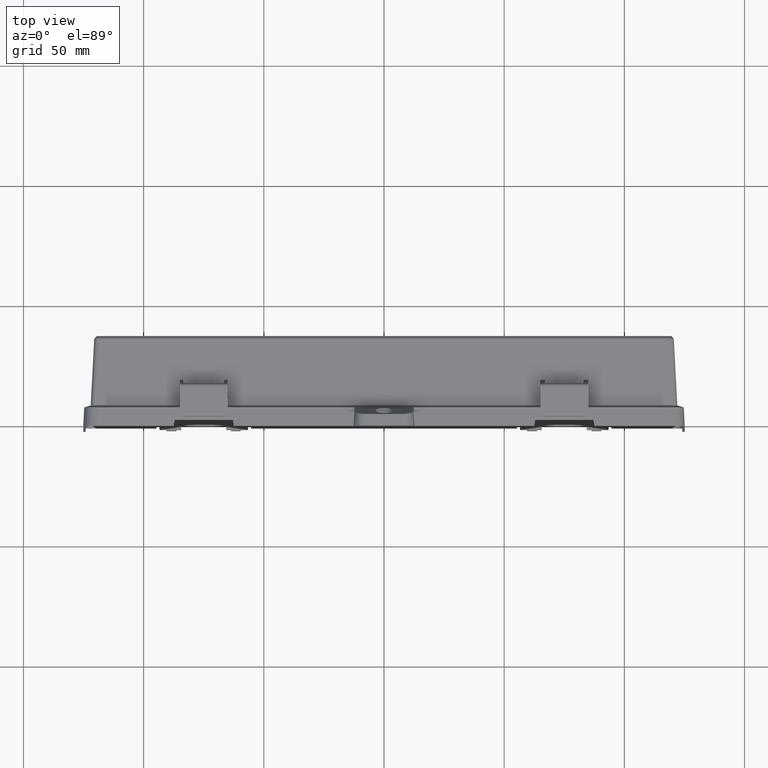
[diagram: clean part render]
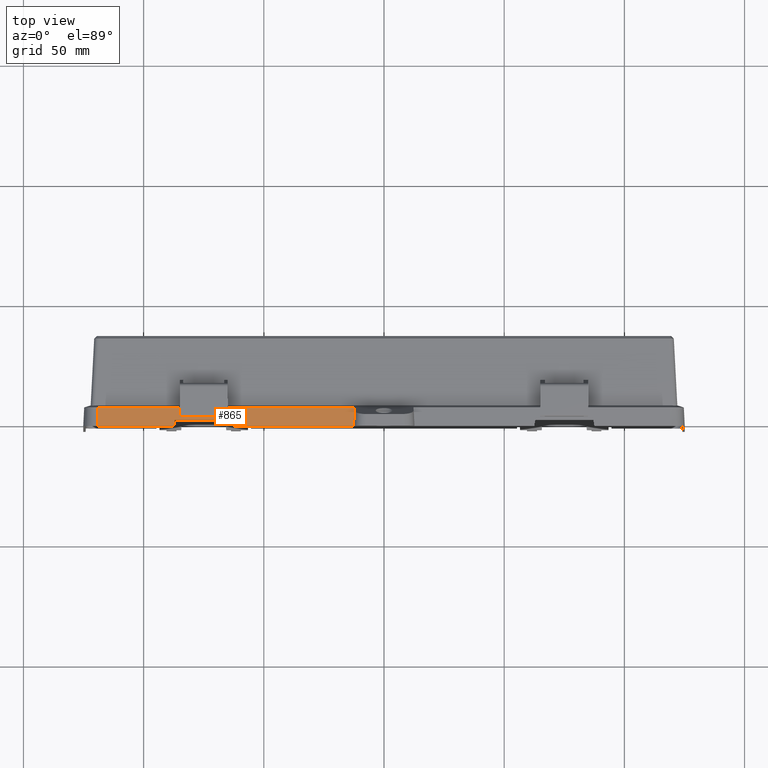
[diagram: same view with one face highlighted and labeled with its STEP entity id]
A machine part, top view. The second image highlights one B-rep face of the part: STEP entity #865.
In plain terms, the highlighted planar face has unit normal (0, 0.0523, 0.9986).
Its self-contained STEP definition (entity closure, byte-faithful):
#253 = DIRECTION ( 'NONE',  ( 0.0000000000000000000, -0.9986295347545739400, 0.05233595624294395300 ) ) ;
#337 = PLANE ( 'NONE',  #4128 ) ;
#362 = DIRECTION ( 'NONE',  ( 0.0000000000000000000, 0.05233595624294395300, 0.9986295347545739400 ) ) ;
#385 = CARTESIAN_POINT ( 'NONE',  ( -119.0000000000000100, 0.0000000000000000000, 75.00000000000000000 ) ) ;
#865 = ADVANCED_FACE ( 'NONE', ( #9425 ), #337, .T. ) ;
#1388 = ORIENTED_EDGE ( 'NONE', *, *, #2449, .F. ) ;
#1389 = ORIENTED_EDGE ( 'NONE', *, *, #2447, .F. ) ;
#1400 = ORIENTED_EDGE ( 'NONE', *, *, #2441, .T. ) ;
#1435 = ORIENTED_EDGE ( 'NONE', *, *, #2488, .F. ) ;
#1436 = ORIENTED_EDGE ( 'NONE', *, *, #2484, .T. ) ;
#1438 = ORIENTED_EDGE ( 'NONE', *, *, #2492, .T. ) ;
#1439 = ORIENTED_EDGE ( 'NONE', *, *, #2495, .T. ) ;
#1441 = ORIENTED_EDGE ( 'NONE', *, *, #2520, .T. ) ;
#1455 = ORIENTED_EDGE ( 'NONE', *, *, #2490, .F. ) ;
#1485 = ORIENTED_EDGE ( 'NONE', *, *, #2485, .T. ) ;
#1514 = ORIENTED_EDGE ( 'NONE', *, *, #2450, .F. ) ;
#1521 = ORIENTED_EDGE ( 'NONE', *, *, #2489, .T. ) ;
#2441 = EDGE_CURVE ( 'NONE', #13873, #13871, #9498, .T. ) ;
#2447 = EDGE_CURVE ( 'NONE', #13834, #13789, #9504, .T. ) ;
#2449 = EDGE_CURVE ( 'NONE', #13547, #13645, #9506, .T. ) ;
#2450 = EDGE_CURVE ( 'NONE', #13742, #13482, #9507, .T. ) ;
#2484 = EDGE_CURVE ( 'NONE', #13831, #13482, #9536, .T. ) ;
#2485 = EDGE_CURVE ( 'NONE', #13742, #13645, #9537, .T. ) ;
#2488 = EDGE_CURVE ( 'NONE', #13831, #13785, #9540, .T. ) ;
#2489 = EDGE_CURVE ( 'NONE', #13547, #13789, #9541, .T. ) ;
#2490 = EDGE_CURVE ( 'NONE', #13873, #13834, #9542, .T. ) ;
#2492 = EDGE_CURVE ( 'NONE', #13871, #13605, #9544, .T. ) ;
#2495 = EDGE_CURVE ( 'NONE', #13605, #13731, #9547, .T. ) ;
#2520 = EDGE_CURVE ( 'NONE', #13731, #13785, #9565, .T. ) ;
#3989 = VECTOR ( 'NONE', #6948, 1000.000000000000100 ) ;
#4003 = VECTOR ( 'NONE', #6866, 1000.000000000000000 ) ;
#4004 = VECTOR ( 'NONE', #6985, 1000.000000000000000 ) ;
#4040 = VECTOR ( 'NONE', #6703, 1000.000000000000100 ) ;
#4059 = VECTOR ( 'NONE', #6910, 1000.000000000000000 ) ;
#4060 = VECTOR ( 'NONE', #6905, 1000.000000000000100 ) ;
#4062 = VECTOR ( 'NONE', #6888, 1000.000000000000000 ) ;
#4065 = VECTOR ( 'NONE', #6823, 1000.000000000000100 ) ;
#4073 = VECTOR ( 'NONE', #6843, 1000.000000000000100 ) ;
#4074 = VECTOR ( 'NONE', #6894, 1000.000000000000000 ) ;
#4106 = VECTOR ( 'NONE', #6984, 1000.000000000000000 ) ;
#4119 = VECTOR ( 'NONE', #6977, 1000.000000000000100 ) ;
#4128 = AXIS2_PLACEMENT_3D ( 'NONE', #385, #362, #253 ) ;
#6449 = CARTESIAN_POINT ( 'NONE',  ( -65.00000000000000000, 1.500000000000000700, 74.92138833107543400 ) ) ;
#6694 = CARTESIAN_POINT ( 'NONE',  ( -85.00000000000000000, 1.500000000000000700, 74.92138833107543400 ) ) ;
#6703 = DIRECTION ( 'NONE',  ( 0.004357329634628408900, 0.9986200545588496100, -0.05233545940693886500 ) ) ;
#6797 = CARTESIAN_POINT ( 'NONE',  ( -119.0000000000000100, -9.740679112084006300E-018, 75.00000000000000000 ) ) ;
#6823 = DIRECTION ( 'NONE',  ( -0.004357329634628408900, 0.9986200545588496100, -0.05233545940693886500 ) ) ;
#6836 = CARTESIAN_POINT ( 'NONE',  ( -119.0000000000000100, 5.301644558294508900, 74.72215258215175000 ) ) ;
#6840 = CARTESIAN_POINT ( 'NONE',  ( -119.0000000000000100, 0.0000000000000000000, 75.00000000000000000 ) ) ;
#6843 = DIRECTION ( 'NONE',  ( -0.0000000000000000000, -0.9986295347545739400, 0.05233595624294395300 ) ) ;
#6860 = CARTESIAN_POINT ( 'NONE',  ( -119.0000000000000100, -2.500000000000000000, 75.13101944820762400 ) ) ;
#6863 = CARTESIAN_POINT ( 'NONE',  ( -119.0000000000000100, -2.500000000000000000, 75.13101944820762400 ) ) ;
#6866 = DIRECTION ( 'NONE',  ( 1.000000000000000000, -0.0000000000000000000, -2.332401312237723900E-016 ) ) ;
#6888 = DIRECTION ( 'NONE',  ( 1.000000000000000000, -0.0000000000000000000, -0.0000000000000000000 ) ) ;
#6894 = DIRECTION ( 'NONE',  ( -1.000000000000000000, -0.0000000000000000000, -0.0000000000000000000 ) ) ;
#6904 = CARTESIAN_POINT ( 'NONE',  ( -88.01975730673703400, -5.447690164311150200, 75.28550134373361400 ) ) ;
#6905 = DIRECTION ( 'NONE',  ( -0.1734173605119497800, -0.9834987238775092500, 0.05154298404612530500 ) ) ;
#6908 = CARTESIAN_POINT ( 'NONE',  ( -64.62671781483297200, 9.561216078719207100, 74.49891789806902400 ) ) ;
#6910 = DIRECTION ( 'NONE',  ( -1.000000000000000000, -0.0000000000000000000, -0.0000000000000000000 ) ) ;
#6911 = CARTESIAN_POINT ( 'NONE',  ( -119.0000000000000100, 5.301644558294508900, 74.72215258215175000 ) ) ;
#6933 = CARTESIAN_POINT ( 'NONE',  ( -85.00000000000000000, 1.500000000000000000, 74.92138833107542000 ) ) ;
#6948 = DIRECTION ( 'NONE',  ( -0.05226442768871403200, -0.9972646886342372300, 0.05226442768871403200 ) ) ;
#6949 = CARTESIAN_POINT ( 'NONE',  ( -12.82006139672491000, -5.549412906027083800, 75.29083240672952100 ) ) ;
#6977 = DIRECTION ( 'NONE',  ( -0.1734173605119497800, 0.9834987238775092500, -0.05154298404612530500 ) ) ;
#6984 = DIRECTION ( 'NONE',  ( 1.000000000000000000, -0.0000000000000000000, -2.332401312237723900E-016 ) ) ;
#6985 = DIRECTION ( 'NONE',  ( 1.000000000000000000, 0.0000000000000000000, -0.0000000000000000000 ) ) ;
#8594 = CARTESIAN_POINT ( 'NONE',  ( -62.94081745177117400, -1.010518664552710400E-016, 75.00000000000000000 ) ) ;
#8611 = CARTESIAN_POINT ( 'NONE',  ( -12.25138157214714100, 5.301644558294508900, 74.72215258215175000 ) ) ;
#8630 = CARTESIAN_POINT ( 'NONE',  ( -119.0000000000000100, 5.301644558294510600, 74.72215258215175000 ) ) ;
#8646 = CARTESIAN_POINT ( 'NONE',  ( -12.66024843820297400, -2.500000000000001300, 75.13101944820762400 ) ) ;
#8669 = CARTESIAN_POINT ( 'NONE',  ( -119.0000000000000100, -2.500000000000000000, 75.13101944820762400 ) ) ;
#8671 = CARTESIAN_POINT ( 'NONE',  ( -62.50000000000001400, -2.500000000000000000, 75.13101944820761000 ) ) ;
#8681 = CARTESIAN_POINT ( 'NONE',  ( -87.50000000000001400, -2.500000000000000000, 75.13101944820761000 ) ) ;
#8682 = CARTESIAN_POINT ( 'NONE',  ( -65.01658790890344600, 5.301644558294508900, 74.72215258215175000 ) ) ;
#8698 = CARTESIAN_POINT ( 'NONE',  ( -87.05918254822884700, -1.010518664552710400E-016, 75.00000000000000000 ) ) ;
#8699 = CARTESIAN_POINT ( 'NONE',  ( -65.00000000000000000, 1.500000000000000000, 74.92138833107542000 ) ) ;
#8709 = CARTESIAN_POINT ( 'NONE',  ( -84.98341209109655400, 5.301644558294508900, 74.72215258215175000 ) ) ;
#8710 = CARTESIAN_POINT ( 'NONE',  ( -85.00000000000000000, 1.500000000000000000, 74.92138833107543400 ) ) ;
#9425 = FACE_OUTER_BOUND ( 'NONE', #13709, .T. ) ;
#9498 = LINE ( 'NONE', #6694, #4040 ) ;
#9504 = LINE ( 'NONE', #6449, #4065 ) ;
#9506 = LINE ( 'NONE', #6949, #3989 ) ;
#9507 = LINE ( 'NONE', #6908, #4119 ) ;
#9536 = LINE ( 'NONE', #6797, #4004 ) ;
#9537 = LINE ( 'NONE', #6863, #4003 ) ;
#9540 = LINE ( 'NONE', #6904, #4060 ) ;
#9541 = LINE ( 'NONE', #6911, #4059 ) ;
#9542 = LINE ( 'NONE', #6933, #4062 ) ;
#9544 = LINE ( 'NONE', #6836, #4074 ) ;
#9547 = LINE ( 'NONE', #6840, #4073 ) ;
#9565 = LINE ( 'NONE', #6860, #4106 ) ;
#13482 = VERTEX_POINT ( 'NONE', #8594 ) ;
#13547 = VERTEX_POINT ( 'NONE', #8611 ) ;
#13605 = VERTEX_POINT ( 'NONE', #8630 ) ;
#13645 = VERTEX_POINT ( 'NONE', #8646 ) ;
#13709 = EDGE_LOOP ( 'NONE', ( #1435, #1436, #1514, #1485, #1388, #1521, #1389, #1455, #1400, #1438, #1439, #1441 ) ) ;
#13731 = VERTEX_POINT ( 'NONE', #8669 ) ;
#13742 = VERTEX_POINT ( 'NONE', #8671 ) ;
#13785 = VERTEX_POINT ( 'NONE', #8681 ) ;
#13789 = VERTEX_POINT ( 'NONE', #8682 ) ;
#13831 = VERTEX_POINT ( 'NONE', #8698 ) ;
#13834 = VERTEX_POINT ( 'NONE', #8699 ) ;
#13871 = VERTEX_POINT ( 'NONE', #8709 ) ;
#13873 = VERTEX_POINT ( 'NONE', #8710 ) ;